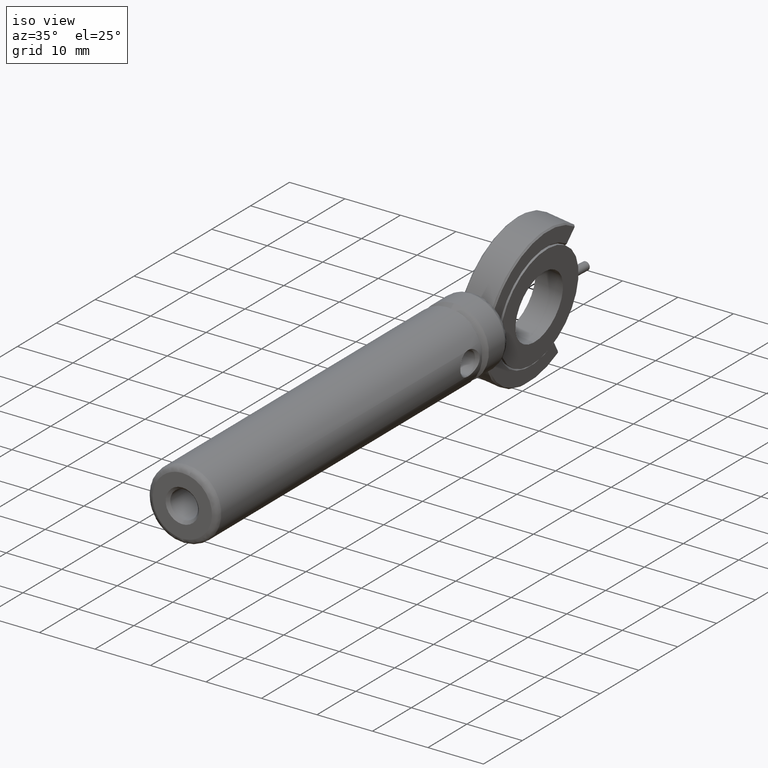
[diagram: clean part render]
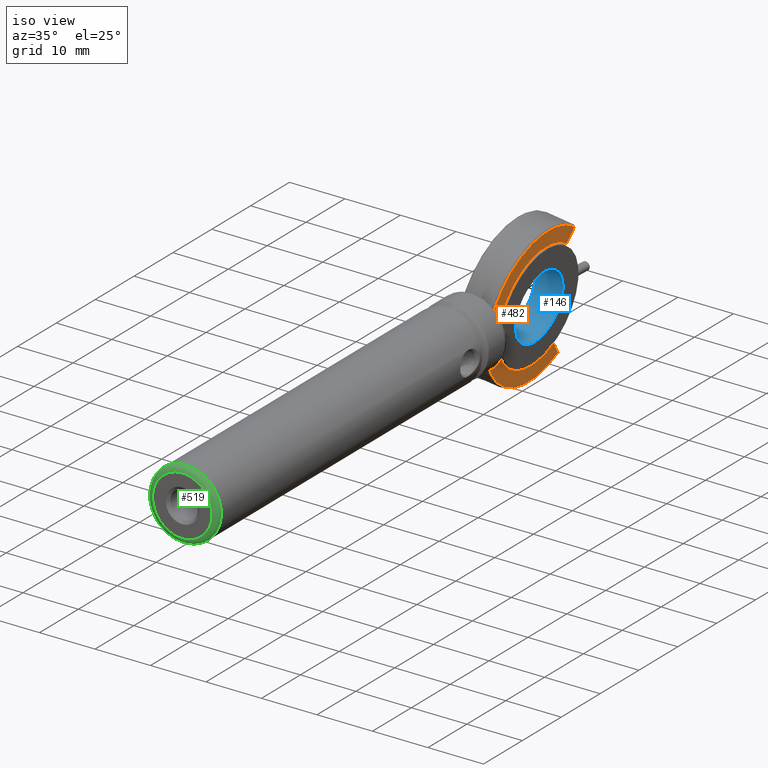
[diagram: same view with three faces highlighted in distinct colors, each labeled with its STEP entity id]
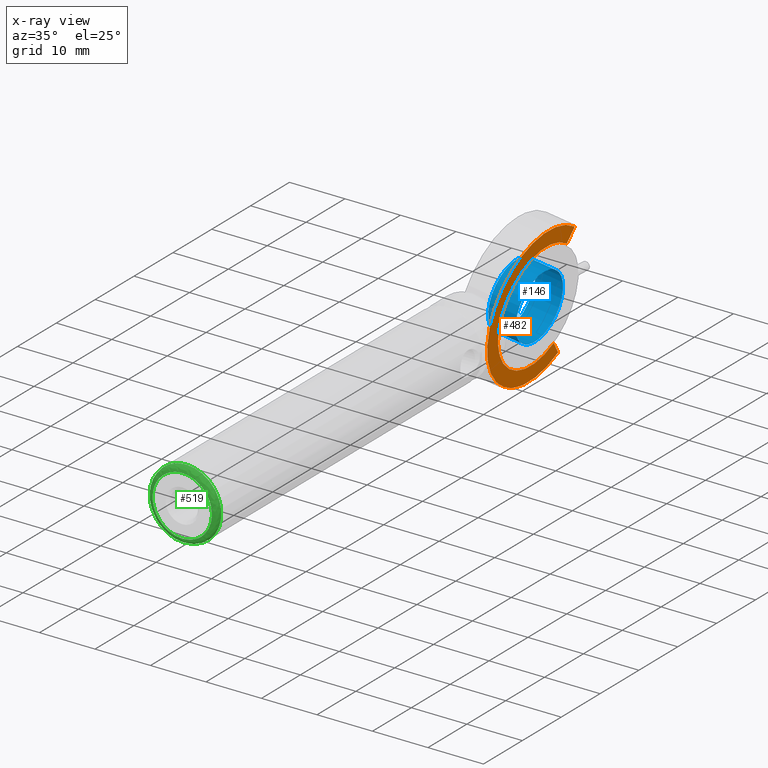
[diagram: x-ray of the same camera — body ghosted, the three highlighted faces saturated]
A machine part, iso view with three faces highlighted in distinct colors.
The next image is the same camera in x-ray (body ghosted, the three faces saturated) — at least one of them is partly hidden behind the body in this view.
Their STEP definitions:

[orange] entity #482 — the highlighted planar face has unit normal (0.9902, 0, -0.1396).
#18 = ORIENTED_EDGE ( 'NONE', *, *, #384, .T. ) ;
#28 = CARTESIAN_POINT ( 'NONE',  ( -45.57521883755011061, 57.14745883663291437, 28.29337259470721122 ) ) ;
#51 = DIRECTION ( 'NONE',  ( -0.1396452907254179254, 0.000000000000000000, -0.9902015919893349949 ) ) ;
#52 = CIRCLE ( 'NONE', #1410, 12.95000000000000284 ) ;
#137 = CARTESIAN_POINT ( 'NONE',  ( -48.57743511857832885, 57.14745883663291437, 7.005154957523822112 ) ) ;
#170 = CARTESIAN_POINT ( 'NONE',  ( -45.88986778163742031, 55.56975033393182173, 26.06224912656503534 ) ) ;
#175 = LINE ( 'NONE', #1847, #1831 ) ;
#193 = VERTEX_POINT ( 'NONE', #1507 ) ;
#227 = CARTESIAN_POINT ( 'NONE',  ( -47.07632697806422328, 49.92581623896437293, 17.64926377611551445 ) ) ;
#228 = VERTEX_POINT ( 'NONE', #459 ) ;
#248 = CARTESIAN_POINT ( 'NONE',  ( -47.07632697806422328, 49.92581623896437293, 17.64926377611551445 ) ) ;
#312 = DIRECTION ( 'NONE',  ( 0.9902015919893352169, -0.000000000000000000, -0.1396452907254177589 ) ) ;
#384 = EDGE_CURVE ( 'NONE', #923, #228, #1698, .T. ) ;
#392 = EDGE_CURVE ( 'NONE', #771, #1128, #175, .T. ) ;
#435 = AXIS2_PLACEMENT_3D ( 'NONE', #227, #800, #51 ) ;
#459 = CARTESIAN_POINT ( 'NONE',  ( -46.83071000548024898, 37.09581623896436753, 19.39089298544186235 ) ) ;
#480 = DIRECTION ( 'NONE',  ( 0.1143907253730566814, -0.5735764363510443831, 0.8111256583362791428 ) ) ;
#482 = ADVANCED_FACE ( 'NONE', ( #978 ), #996, .T. ) ;
#489 = CARTESIAN_POINT ( 'NONE',  ( -47.07632697806423039, 49.92581623896437293, 17.64926377611551445 ) ) ;
#668 = LINE ( 'NONE', #849, #842 ) ;
#719 = DIRECTION ( 'NONE',  ( 0.000000000000000000, -1.000000000000000000, 0.000000000000000000 ) ) ;
#737 = CARTESIAN_POINT ( 'NONE',  ( -47.07632697806422328, 49.92581623896437293, 17.64926377611551445 ) ) ;
#742 = AXIS2_PLACEMENT_3D ( 'NONE', #248, #1150, #1282 ) ;
#761 = LINE ( 'NONE', #170, #1353 ) ;
#770 = DIRECTION ( 'NONE',  ( 0.1143907253730566675, 0.5735764363510444941, 0.8111256583362790318 ) ) ;
#771 = VERTEX_POINT ( 'NONE', #137 ) ;
#800 = DIRECTION ( 'NONE',  ( -0.9902015919893352169, -0.000000000000000000, 0.1396452907254177589 ) ) ;
#806 = AXIS2_PLACEMENT_3D ( 'NONE', #489, #312, #1400 ) ;
#816 = ORIENTED_EDGE ( 'NONE', *, *, #1968, .T. ) ;
#818 = EDGE_CURVE ( 'NONE', #193, #771, #52, .T. ) ;
#842 = VECTOR ( 'NONE', #1581, 1000.000000000000227 ) ;
#849 = CARTESIAN_POINT ( 'NONE',  ( -46.64295159293748583, 37.09581623896436753, 20.72225674316999999 ) ) ;
#886 = ORIENTED_EDGE ( 'NONE', *, *, #1594, .T. ) ;
#913 = ORIENTED_EDGE ( 'NONE', *, *, #392, .T. ) ;
#923 = VERTEX_POINT ( 'NONE', #28 ) ;
#969 = EDGE_CURVE ( 'NONE', #228, #193, #668, .T. ) ;
#978 = FACE_OUTER_BOUND ( 'NONE', #1894, .T. ) ;
#996 = PLANE ( 'NONE',  #742 ) ;
#1128 = VERTEX_POINT ( 'NONE', #1469 ) ;
#1150 = DIRECTION ( 'NONE',  ( 0.9902015919893351059, 0.000000000000000000, -0.1396452907254177589 ) ) ;
#1282 = DIRECTION ( 'NONE',  ( -0.1396452907254177311, 0.000000000000000000, -0.9902015919893349949 ) ) ;
#1293 = ORIENTED_EDGE ( 'NONE', *, *, #969, .T. ) ;
#1328 = ORIENTED_EDGE ( 'NONE', *, *, #818, .T. ) ;
#1353 = VECTOR ( 'NONE', #770, 1000.000000000000000 ) ;
#1400 = DIRECTION ( 'NONE',  ( 0.1396452907254177866, 0.000000000000000000, 0.9902015919893351059 ) ) ;
#1410 = AXIS2_PLACEMENT_3D ( 'NONE', #737, #1470, #719 ) ;
#1469 = CARTESIAN_POINT ( 'NONE',  ( -48.26278617449101915, 55.56975033393182173, 9.236278425665991776 ) ) ;
#1470 = DIRECTION ( 'NONE',  ( 0.9902015919893352169, 3.285461128743953764E-17, -0.1396452907254177589 ) ) ;
#1507 = CARTESIAN_POINT ( 'NONE',  ( -47.32194395064819759, 37.09581623896436753, 15.90763456678919852 ) ) ;
#1581 = DIRECTION ( 'NONE',  ( -0.1396452907254177311, -0.000000000000000000, -0.9902015919893349949 ) ) ;
#1594 = EDGE_CURVE ( 'NONE', #1128, #1922, #1604, .T. ) ;
#1604 = CIRCLE ( 'NONE', #435, 10.19999999999999929 ) ;
#1687 = CARTESIAN_POINT ( 'NONE',  ( -45.88986778163742031, 55.56975033393182173, 26.06224912656503534 ) ) ;
#1698 = CIRCLE ( 'NONE', #806, 12.95000000000000107 ) ;
#1831 = VECTOR ( 'NONE', #480, 1000.000000000000000 ) ;
#1847 = CARTESIAN_POINT ( 'NONE',  ( -48.57743511857832885, 57.14745883663291437, 7.005154957523820336 ) ) ;
#1894 = EDGE_LOOP ( 'NONE', ( #1293, #1328, #913, #886, #816, #18 ) ) ;
#1922 = VERTEX_POINT ( 'NONE', #1687 ) ;
#1968 = EDGE_CURVE ( 'NONE', #1922, #923, #761, .T. ) ;

[blue] entity #146 — the highlighted cylindrical surface (bore or boss wall) has radius 6 mm, axis along (0.9902, 0, -0.1396).
#104 = ORIENTED_EDGE ( 'NONE', *, *, #831, .F. ) ;
#146 = ADVANCED_FACE ( 'NONE', ( #1934, #571 ), #1658, .F. ) ;
#148 = DIRECTION ( 'NONE',  ( -0.1395542542398919283, -0.03610262665451150627, -0.9895560673717244127 ) ) ;
#199 = ORIENTED_EDGE ( 'NONE', *, *, #1170, .F. ) ;
#278 = DIRECTION ( 'NONE',  ( -0.9902015919893351059, -1.734723475976807094E-18, 0.1396452907254177311 ) ) ;
#284 = DIRECTION ( 'NONE',  ( -0.1395542542398919283, -0.03610262665451150627, -0.9895560673717244127 ) ) ;
#297 = AXIS2_PLACEMENT_3D ( 'NONE', #875, #278, #1659 ) ;
#340 = CARTESIAN_POINT ( 'NONE',  ( -52.69632619281208008, 49.70920047903730676, 12.38641412608893866 ) ) ;
#382 = CARTESIAN_POINT ( 'NONE',  ( -47.74531823286540089, 49.70920047903730676, 11.68818767246185075 ) ) ;
#391 = EDGE_LOOP ( 'NONE', ( #199 ) ) ;
#495 = VERTEX_POINT ( 'NONE', #382 ) ;
#571 = FACE_OUTER_BOUND ( 'NONE', #1243, .T. ) ;
#573 = CARTESIAN_POINT ( 'NONE',  ( -51.85900066737272596, 49.92581623896437293, 18.32375053031928402 ) ) ;
#829 = VERTEX_POINT ( 'NONE', #340 ) ;
#831 = EDGE_CURVE ( 'NONE', #829, #829, #1926, .T. ) ;
#875 = CARTESIAN_POINT ( 'NONE',  ( -46.90799270742605387, 49.92581623896437293, 17.62552407669219789 ) ) ;
#902 = CARTESIAN_POINT ( 'NONE',  ( -51.85900066737272596, 49.92581623896437293, 18.32375053031928402 ) ) ;
#1055 = DIRECTION ( 'NONE',  ( 0.9902015919893351059, 1.734723475976807094E-18, -0.1396452907254177311 ) ) ;
#1066 = AXIS2_PLACEMENT_3D ( 'NONE', #573, #1055, #148 ) ;
#1170 = EDGE_CURVE ( 'NONE', #495, #495, #1738, .T. ) ;
#1243 = EDGE_LOOP ( 'NONE', ( #104 ) ) ;
#1361 = DIRECTION ( 'NONE',  ( 0.9902015919893351059, 1.734723475976807094E-18, -0.1396452907254177311 ) ) ;
#1658 = CYLINDRICAL_SURFACE ( 'NONE', #1662, 6.000000000000000888 ) ;
#1659 = DIRECTION ( 'NONE',  ( -0.1395542542398919283, -0.03610262665451150627, -0.9895560673717244127 ) ) ;
#1662 = AXIS2_PLACEMENT_3D ( 'NONE', #902, #1361, #284 ) ;
#1738 = CIRCLE ( 'NONE', #297, 6.000000000000000888 ) ;
#1926 = CIRCLE ( 'NONE', #1066, 6.000000000000000888 ) ;
#1934 = FACE_OUTER_BOUND ( 'NONE', #391, .T. ) ;

[green] entity #519 — the highlighted face is a freeform B-spline surface patch.
#79 = VERTEX_POINT ( 'NONE', #1898 ) ;
#112 = CARTESIAN_POINT ( 'NONE',  ( -37.87829840118161684, -37.90418376103562537, 23.96209249870102909 ) ) ;
#130 = ORIENTED_EDGE ( 'NONE', *, *, #1942, .F. ) ;
#133 = CARTESIAN_POINT ( 'NONE',  ( -49.74987127643542806, -37.90418376103562537, 12.67630606107413627 ) ) ;
#141 = CARTESIAN_POINT ( 'NONE',  ( -49.74987127643542806, -37.48997019866253311, 24.37630606107413911 ) ) ;
#244 = VERTEX_POINT ( 'NONE', #1154 ) ;
#247 = EDGE_LOOP ( 'NONE', ( #898, #299 ) ) ;
#257 = CARTESIAN_POINT ( 'NONE',  ( -61.62144415168923928, -37.90418376103562537, 23.96209249870105751 ) ) ;
#260 = EDGE_CURVE ( 'NONE', #1176, #79, #1609, .T. ) ;
#265 = CARTESIAN_POINT ( 'NONE',  ( -61.62144415168925349, -37.90418376103562537, 12.09051962344724629 ) ) ;
#276 = CARTESIAN_POINT ( 'NONE',  ( -49.74987127643542806, -37.90418376103562537, 23.37630606107413911 ) ) ;
#299 = ORIENTED_EDGE ( 'NONE', *, *, #991, .T. ) ;
#322 = CARTESIAN_POINT ( 'NONE',  ( -39.04987127643543232, -37.90418376103562537, 23.37630606107413911 ) ) ;
#365 = CARTESIAN_POINT ( 'NONE',  ( -49.74987127643542806, -37.48997019866253311, 24.37630606107413911 ) ) ;
#387 = FACE_OUTER_BOUND ( 'NONE', #247, .T. ) ;
#390 = CARTESIAN_POINT ( 'NONE',  ( -49.74987127643542806, -37.90418376103562537, 12.67630606107413627 ) ) ;
#408 = CARTESIAN_POINT ( 'NONE',  ( -49.74987127643542806, -36.90418376103562537, 11.67630606107413627 ) ) ;
#436 = CIRCLE ( 'NONE', #1227, 6.349999999999999645 ) ;
#448 = CARTESIAN_POINT ( 'NONE',  ( -39.04987127643543232, -37.90418376103562537, 12.67630606107413627 ) ) ;
#519 = ADVANCED_FACE ( 'NONE', ( #1142, #387 ), #868, .T. ) ;
#568 = EDGE_LOOP ( 'NONE', ( #130 ) ) ;
#655 = CARTESIAN_POINT ( 'NONE',  ( -49.74987127643542806, -37.90418376103562537, 12.67630606107413627 ) ) ;
#665 = CARTESIAN_POINT ( 'NONE',  ( -62.44987127643543801, -36.90418376103561826, 11.67630606107413627 ) ) ;
#705 = CARTESIAN_POINT ( 'NONE',  ( -37.04987127643543232, -36.90418376103561826, 11.67630606107413627 ) ) ;
#724 = CARTESIAN_POINT ( 'NONE',  ( -49.74987127643542806, -37.90418376103561826, 23.96209249870104330 ) ) ;
#732 = CARTESIAN_POINT ( 'NONE',  ( -49.74987127643542806, -37.90418376103561826, 23.96209249870104330 ) ) ;
#752 = CARTESIAN_POINT ( 'NONE',  ( -39.04987127643543232, -37.90418376103562537, 23.37630606107413911 ) ) ;
#824 = CARTESIAN_POINT ( 'NONE',  ( -49.74987127643542806, -36.90418376103562537, 24.37630606107413911 ) ) ;
#858 = CARTESIAN_POINT ( 'NONE',  ( -49.74987127643542806, -37.90418376103562537, 23.37630606107413911 ) ) ;
#868 =( BOUNDED_SURFACE ( )  B_SPLINE_SURFACE ( 3, 3, ( 
 ( #824, #1731, #705, #408, #665, #1274, #1884 ),
 ( #365, #1656, #899, #1971, #1020, #1637, #141 ),
 ( #732, #112, #1208, #1503, #265, #257, #724 ),
 ( #1824, #752, #448, #133, #1359, #1940, #276 ) ),
 .UNSPECIFIED., .F., .T., .F. ) 
 B_SPLINE_SURFACE_WITH_KNOTS ( ( 4, 4 ),
 ( 4, 3, 4 ),
 ( 0.000000000000000000, 1.000000000000000000 ),
 ( 0.000000000000000000, 0.5000000000000000000, 1.000000000000000000 ),
 .UNSPECIFIED. ) 
 GEOMETRIC_REPRESENTATION_ITEM ( )  RATIONAL_B_SPLINE_SURFACE ( (
 ( 1.000000000000000000, 0.3333333333333333148, 0.3333333333333333148, 1.000000000000000000, 0.3333333333333333148, 0.3333333333333333148, 1.000000000000000000),
 ( 0.8047378541243649375, 0.2682459513747882940, 0.2682459513747882940, 0.8047378541243649375, 0.2682459513747882940, 0.2682459513747882940, 0.8047378541243649375),
 ( 0.8047378541243649375, 0.2682459513747882940, 0.2682459513747882940, 0.8047378541243649375, 0.2682459513747882940, 0.2682459513747882940, 0.8047378541243649375),
 ( 1.000000000000000000, 0.3333333333333333148, 0.3333333333333333148, 1.000000000000000000, 0.3333333333333333148, 0.3333333333333333148, 1.000000000000000000) ) ) 
 REPRESENTATION_ITEM ( '' )  SURFACE ( )  );
#898 = ORIENTED_EDGE ( 'NONE', *, *, #260, .T. ) ;
#899 = CARTESIAN_POINT ( 'NONE',  ( -37.04987127643543943, -37.48997019866252600, 11.67630606107412206 ) ) ;
#936 =( BOUNDED_CURVE ( )  B_SPLINE_CURVE ( 3, ( #390, #1145, #1277, #858 ),
 .UNSPECIFIED., .F., .T. ) 
 B_SPLINE_CURVE_WITH_KNOTS ( ( 4, 4 ),
 ( 0.000000000000000000, 1.000000000000000000 ),
 .UNSPECIFIED. ) 
 CURVE ( )  GEOMETRIC_REPRESENTATION_ITEM ( )  RATIONAL_B_SPLINE_CURVE ( ( 1.000000000000000000, 0.3333333333333333703, 0.3333333333333333703, 1.000000000000000000 ) ) 
 REPRESENTATION_ITEM ( '' )  );
#991 = EDGE_CURVE ( 'NONE', #79, #1176, #936, .T. ) ;
#1020 = CARTESIAN_POINT ( 'NONE',  ( -62.44987127643545222, -37.48997019866252600, 11.67630606107415048 ) ) ;
#1034 = CARTESIAN_POINT ( 'NONE',  ( -49.74987127643542806, -37.90418376103562537, 23.37630606107413911 ) ) ;
#1077 = CARTESIAN_POINT ( 'NONE',  ( -39.04987127643543232, -37.90418376103562537, 12.67630606107413982 ) ) ;
#1142 = FACE_OUTER_BOUND ( 'NONE', #568, .T. ) ;
#1145 = CARTESIAN_POINT ( 'NONE',  ( -60.44987127643543801, -37.90418376103562537, 12.67630606107413449 ) ) ;
#1154 = CARTESIAN_POINT ( 'NONE',  ( -49.74987127643542806, -36.90418376103562537, 11.67630606107413804 ) ) ;
#1176 = VERTEX_POINT ( 'NONE', #1034 ) ;
#1206 = DIRECTION ( 'NONE',  ( 0.000000000000000000, 1.000000000000000000, 0.000000000000000000 ) ) ;
#1208 = CARTESIAN_POINT ( 'NONE',  ( -37.87829840118163105, -37.90418376103562537, 12.09051962344721787 ) ) ;
#1227 = AXIS2_PLACEMENT_3D ( 'NONE', #1239, #1206, #1663 ) ;
#1239 = CARTESIAN_POINT ( 'NONE',  ( -49.74987127643542806, -36.90418376103562537, 18.02630606107413769 ) ) ;
#1265 = CARTESIAN_POINT ( 'NONE',  ( -49.74987127643542806, -37.90418376103562537, 23.37630606107413911 ) ) ;
#1274 = CARTESIAN_POINT ( 'NONE',  ( -62.44987127643543801, -36.90418376103561826, 24.37630606107413556 ) ) ;
#1277 = CARTESIAN_POINT ( 'NONE',  ( -60.44987127643543801, -37.90418376103562537, 23.37630606107413911 ) ) ;
#1359 = CARTESIAN_POINT ( 'NONE',  ( -60.44987127643542379, -37.90418376103562537, 12.67630606107413627 ) ) ;
#1503 = CARTESIAN_POINT ( 'NONE',  ( -49.74987127643542806, -37.90418376103561826, 12.09051962344723208 ) ) ;
#1609 =( BOUNDED_CURVE ( )  B_SPLINE_CURVE ( 3, ( #1265, #322, #1077, #655 ),
 .UNSPECIFIED., .F., .F. ) 
 B_SPLINE_CURVE_WITH_KNOTS ( ( 4, 4 ),
 ( 0.000000000000000000, 1.000000000000000000 ),
 .UNSPECIFIED. ) 
 CURVE ( )  GEOMETRIC_REPRESENTATION_ITEM ( )  RATIONAL_B_SPLINE_CURVE ( ( 1.000000000000000000, 0.3333333333333333703, 0.3333333333333333703, 1.000000000000000000 ) ) 
 REPRESENTATION_ITEM ( '' )  );
#1637 = CARTESIAN_POINT ( 'NONE',  ( -62.44987127643542379, -37.48997019866252600, 24.37630606107415332 ) ) ;
#1656 = CARTESIAN_POINT ( 'NONE',  ( -37.04987127643541811, -37.48997019866252600, 24.37630606107412490 ) ) ;
#1663 = DIRECTION ( 'NONE',  ( 0.000000000000000000, 0.000000000000000000, -1.000000000000000000 ) ) ;
#1731 = CARTESIAN_POINT ( 'NONE',  ( -37.04987127643543232, -36.90418376103561826, 24.37630606107413556 ) ) ;
#1824 = CARTESIAN_POINT ( 'NONE',  ( -49.74987127643542806, -37.90418376103562537, 23.37630606107413911 ) ) ;
#1884 = CARTESIAN_POINT ( 'NONE',  ( -49.74987127643542806, -36.90418376103562537, 24.37630606107413911 ) ) ;
#1898 = CARTESIAN_POINT ( 'NONE',  ( -49.74987127643542806, -37.90418376103562537, 12.67630606107413627 ) ) ;
#1940 = CARTESIAN_POINT ( 'NONE',  ( -60.44987127643542379, -37.90418376103562537, 23.37630606107413911 ) ) ;
#1942 = EDGE_CURVE ( 'NONE', #244, #244, #436, .T. ) ;
#1971 = CARTESIAN_POINT ( 'NONE',  ( -49.74987127643542806, -37.48997019866253311, 11.67630606107413449 ) ) ;